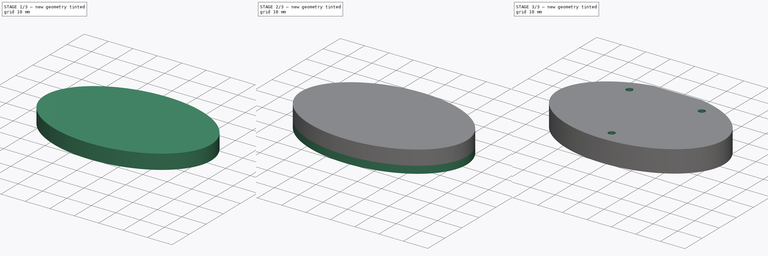
[diagram: build sequence overview — one tinted view per stage of 3, left to right]
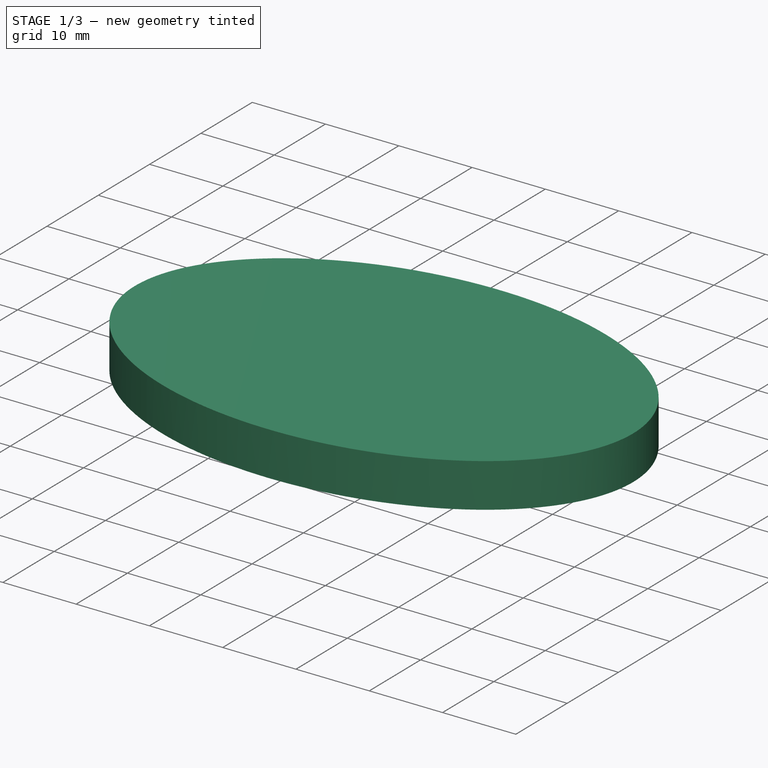
[diagram: stage 1 of 3 — iso view after this stage's code; geometry added in this stage tinted green]
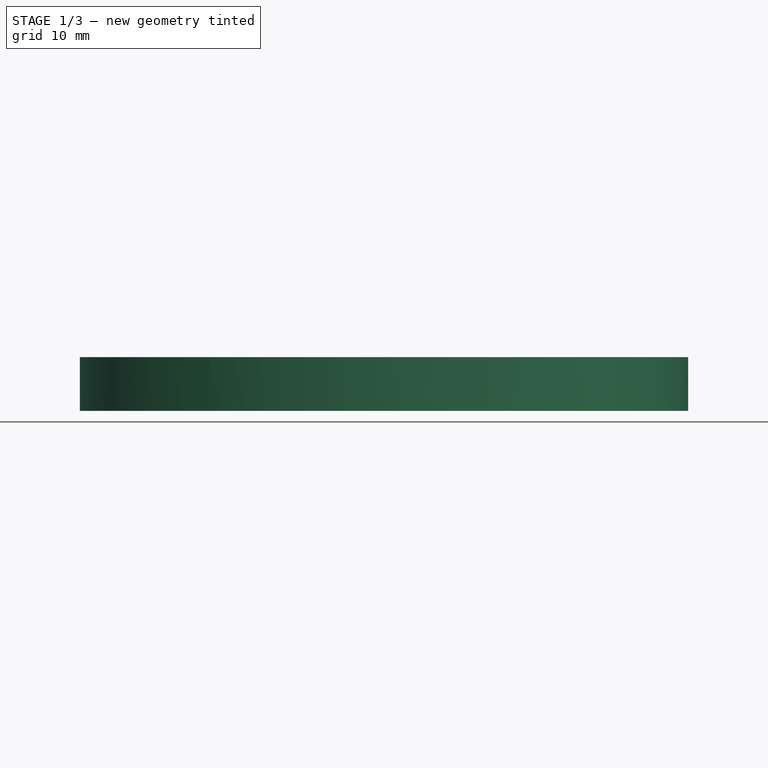
[diagram: stage 1 of 3 — front view after this stage's code; geometry added in this stage tinted green]
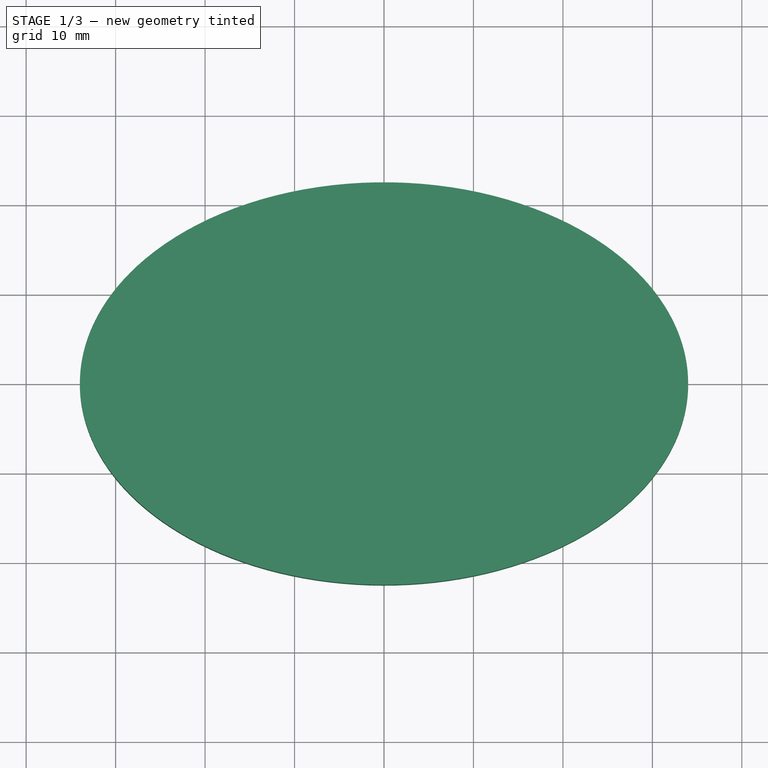
[diagram: stage 1 of 3 — top view after this stage's code; geometry added in this stage tinted green]
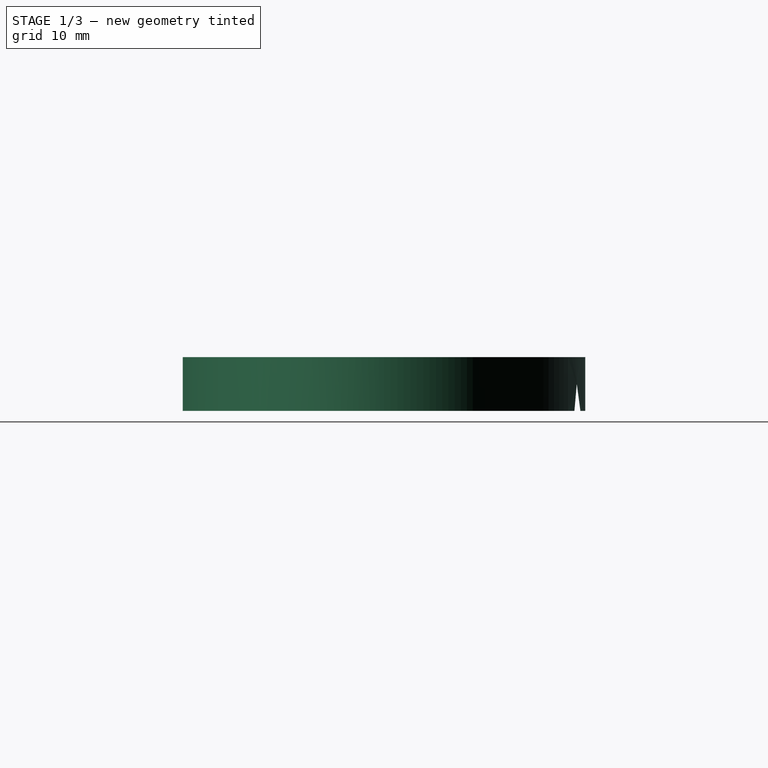
[diagram: stage 1 of 3 — right view after this stage's code; geometry added in this stage tinted green]
FCSTD DOCUMENT  (FreeCAD 0.17R13541 (Git))
Label: Digi-Night-Light-8Dense-LEDS-Oval-USB-V0.15
License: All rights reserved
LicenseURL: http://en.wikipedia.org/wiki/All_rights_reserved
objects: Sketcher::SketchObject×6, PartDesign::Pocket×4, PartDesign::Pad×2, PartDesign::Body×1, App::Part×1
note: 19 computed .brp shape members not serialized (recipe doc carries the construction recipe); baked Part::Feature solids carry a one-line shape summary decoded from their .brp

FEATURE [Sketcher::SketchObject] Sketch
  MapMode = 5
  Support = -> [XY_Plane001]
  sketch-geometry (6):
    g0: Ellipse CenterX=0 CenterY=0 CenterZ=0 NormalX=0 NormalY=0 NormalZ=1 MajorRadius=34 MinorRadius=22.5 AngleXU=0
    g1: LineSegment [constr] StartX=34 StartY=0 StartZ=0 EndX=-34 EndY=0 EndZ=0
    g2: LineSegment [constr] StartX=0 StartY=22.5 StartZ=0 EndX=0 EndY=-22.5 EndZ=0
    g3: GeomPoint X=25.4902 Y=0 Z=0
    g4: GeomPoint X=-25.4902 Y=0 Z=0
    g5: LineSegment StartX=-6.25 StartY=-22.1166 StartZ=0 EndX=6.25 EndY=-22.1166 EndZ=0
  constraints (9):
    c: InternalAlignment(g1-g4 -> g0) x4
    c: Coincident(g0,g-1)
    c: PointOnObject(g2,g-2)
    c: Distance(g2,g2) = 45
    c: Distance(g1,g1) = 68
    c: PointOnObject(g5,g0)
    c: PointOnObject(g5,g0)
    c: Horizontal(g5)
    c: Distance(g5,g5) = 12.5
FEATURE [PartDesign::Pad] Pad
  Length = 6
  Length2 = 100
  Profile = -> Sketch
  Type = 0
FEATURE [Sketcher::SketchObject] Sketch001
  ExternalGeometry = -> [Pad]
  MapMode = 5
  Placement = pos=(0,0,0) rot=(1,0,0;3.14159rad)
  Support = -> [Pad]
  sketch-geometry (9):
    g0: LineSegment StartX=9.775 StartY=-3.45006 StartZ=0 EndX=9.775 EndY=-21.5501 EndZ=0
    g1: LineSegment StartX=9.775 StartY=-21.5501 StartZ=0 EndX=-9.775 EndY=-21.5501 EndZ=0
    g2: LineSegment StartX=-9.775 StartY=-21.5501 StartZ=0 EndX=-9.775 EndY=-3.45006 EndZ=0
    g3: LineSegment StartX=-28.5 StartY=8.54994 StartZ=0 EndX=28.5 EndY=8.54994 EndZ=0
    g4: LineSegment StartX=28.5 StartY=8.54994 StartZ=0 EndX=28.5 EndY=-3.45006 EndZ=0
    g5: LineSegment StartX=-28.5 StartY=-3.45006 StartZ=0 EndX=-28.5 EndY=8.54994 EndZ=0
    g6: GeomPoint X=0 Y=8.54994 Z=0
    g7: LineSegment StartX=-28.5 StartY=-3.45006 StartZ=0 EndX=-9.775 EndY=-3.45006 EndZ=0
    g8: LineSegment StartX=9.775 StartY=-3.45006 StartZ=0 EndX=28.5 EndY=-3.45006 EndZ=0
  constraints (26):
    c: Coincident(g0,g1)
    c: Coincident(g1,g2)
    c: Horizontal(g1)
    c: Vertical(g0)
    c: Vertical(g2)
    c: PointOnObject(g1,g-3)
    c: PointOnObject(g0,g-3)
    c: Distance(g1) = 19.55
    c: Distance(g0) = 18.1
    c: Coincident(g3,g4)
    c: Coincident(g5,g3)
    c: Horizontal(g3)
    c: Vertical(g4)
    c: Vertical(g5)
    c: Distance(g4) = 12
    c: Distance(g3) = 57
    c: PointOnObject(g6,g3)
    c: Symmetric(g3,g3,g6)
    c: PointOnObject(g6,g-2)
    c: Coincident(g7,g5)
    c: Coincident(g7,g2)
    c: Horizontal(g7)
    c: Coincident(g8,g0)
    c: Coincident(g8,g4)
    c: Horizontal(g8)
    c: Distance(g2) = 18.1
FEATURE [PartDesign::Pocket] Pocket
  BaseFeature = -> Pad
  Length = 3
  Length2 = 100
  Profile = -> Sketch001
  Type = 0
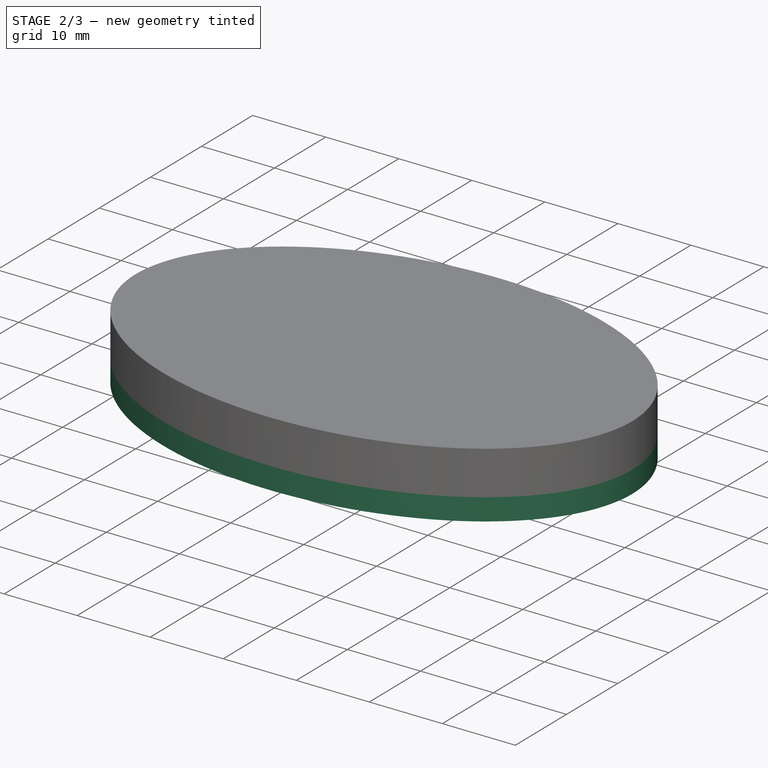
[diagram: stage 2 of 3 — iso view after this stage's code; geometry added in this stage tinted green]
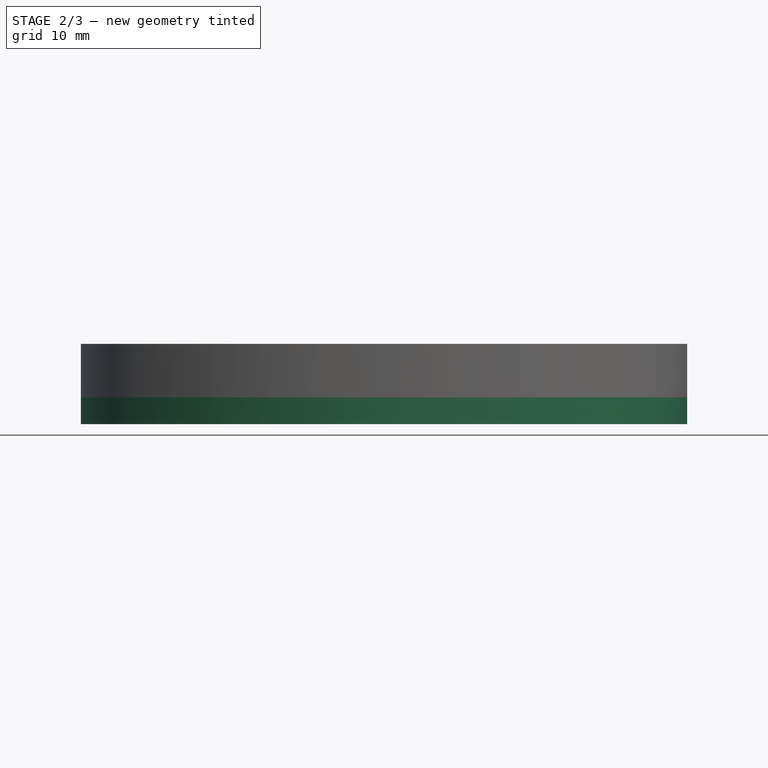
[diagram: stage 2 of 3 — front view after this stage's code; geometry added in this stage tinted green]
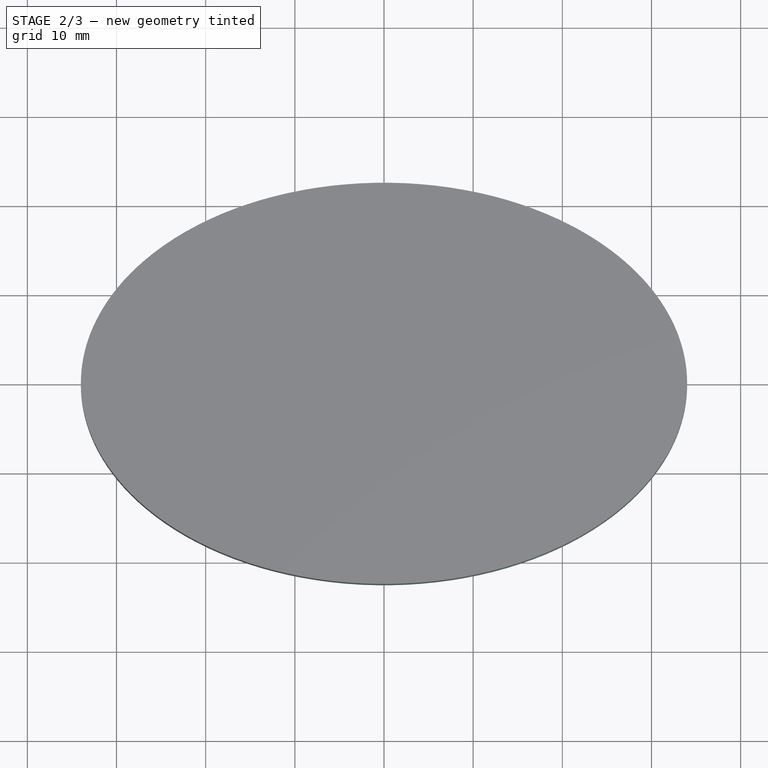
[diagram: stage 2 of 3 — top view after this stage's code; geometry added in this stage tinted green]
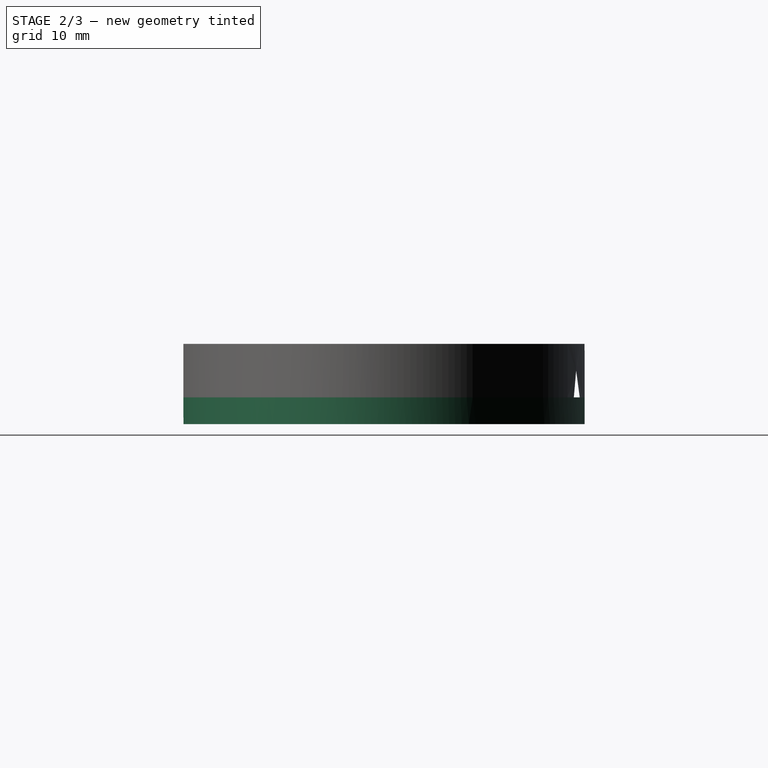
[diagram: stage 2 of 3 — right view after this stage's code; geometry added in this stage tinted green]
FEATURE [Sketcher::SketchObject] Sketch002
  ExternalGeometry = -> [Pocket]
  MapMode = 5
  Placement = pos=(0,0,0) rot=(1,0,0;3.14159rad)
  Support = -> [Pocket]
  sketch-geometry (5):
    g0: Ellipse CenterX=0 CenterY=0 CenterZ=0 NormalX=0 NormalY=0 NormalZ=1 MajorRadius=34 MinorRadius=22.5 AngleXU=0
    g1: LineSegment [constr] StartX=34 StartY=0 StartZ=0 EndX=-34 EndY=0 EndZ=0
    g2: LineSegment [constr] StartX=0 StartY=22.5 StartZ=0 EndX=0 EndY=-22.5 EndZ=0
    g3: GeomPoint X=25.4902 Y=0 Z=0
    g4: GeomPoint X=-25.4902 Y=0 Z=0
  constraints (4):
    c: InternalAlignment(g1-g4 -> g0) x4
    c: Coincident(g0,g-1)
    c: Equal(g0,g-3)
    c: PointOnObject(g2,g-2)
FEATURE [PartDesign::Pad] Pad001
  BaseFeature = -> Pocket
  Length = 3
  Length2 = 100
  Profile = -> Sketch002
  Type = 0
FEATURE [Sketcher::SketchObject] Sketch003
  ExternalGeometry = -> [Pad001]
  MapMode = 5
  Placement = pos=(0,0,-3) rot=(1,0,0;3.14159rad)
  Support = -> [Pad001]
  sketch-geometry (5):
    g0: LineSegment StartX=-28 StartY=4.04994 StartZ=0 EndX=28 EndY=4.04994 EndZ=0
    g1: LineSegment StartX=28 StartY=4.04994 StartZ=0 EndX=28 EndY=1.04994 EndZ=0
    g2: LineSegment StartX=28 StartY=1.04994 StartZ=0 EndX=-28 EndY=1.04994 EndZ=0
    g3: LineSegment StartX=-28 StartY=1.04994 StartZ=0 EndX=-28 EndY=4.04994 EndZ=0
    g4: GeomPoint X=0 Y=4.04994 Z=0
  constraints (14):
    c: Coincident(g0,g1)
    c: Coincident(g1,g2)
    c: Coincident(g2,g3)
    c: Coincident(g3,g0)
    c: Horizontal(g0)
    c: Horizontal(g2)
    c: Vertical(g1)
    c: Vertical(g3)
    c: Distance(g1) = 3
    c: Distance(g0) = 56
    c: PointOnObject(g4,g0)
    c: Symmetric(g0,g0,g4)
    c: PointOnObject(g4,g-2)
    c: Distance(g0,g-3) = 4.5
FEATURE [PartDesign::Pocket] Pocket001
  BaseFeature = -> Pad001
  Length = 3
  Length2 = 100
  Profile = -> Sketch003
  Type = 0
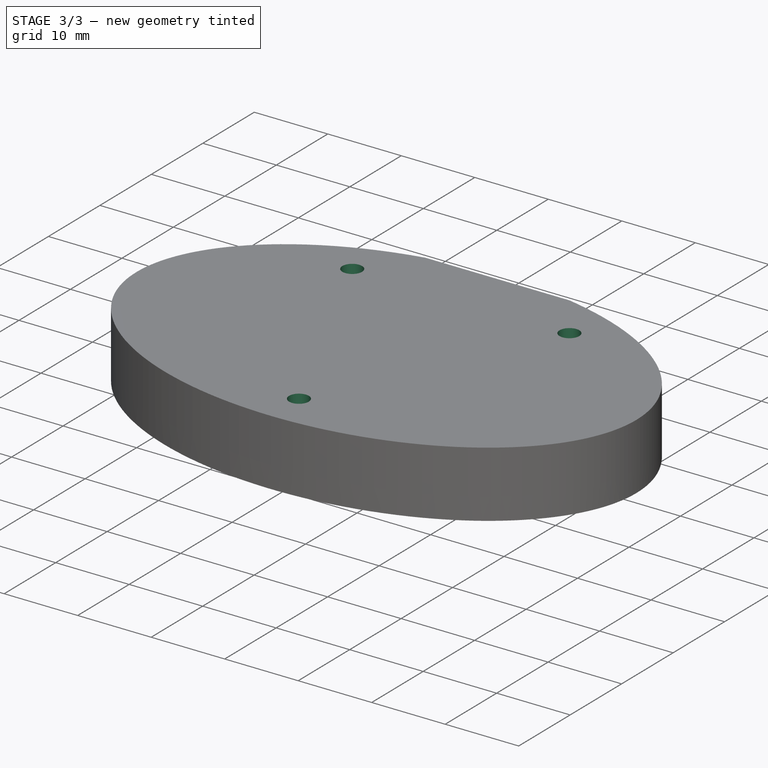
[diagram: stage 3 of 3 — iso view after this stage's code; geometry added in this stage tinted green]
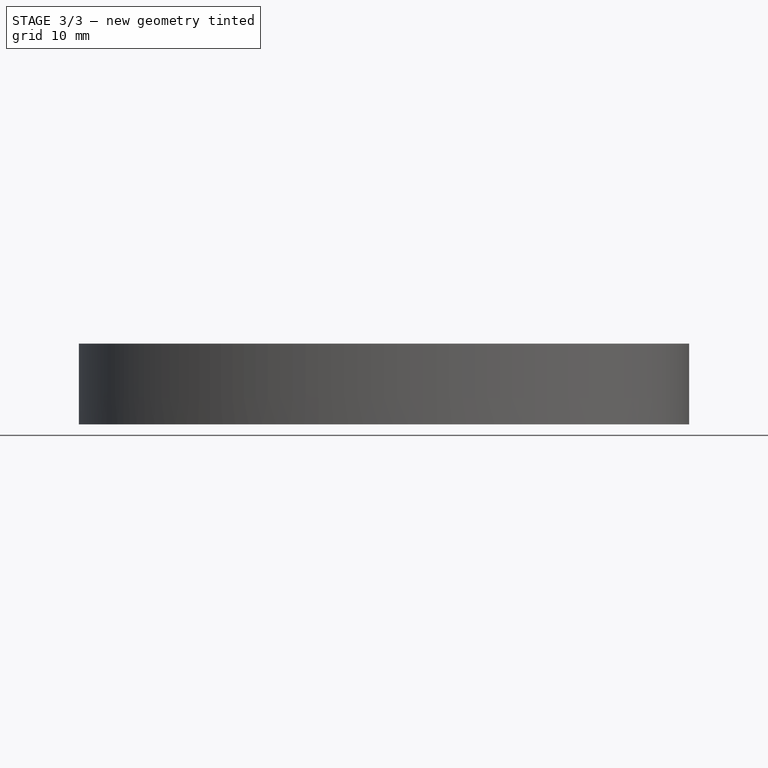
[diagram: stage 3 of 3 — front view after this stage's code; geometry added in this stage tinted green]
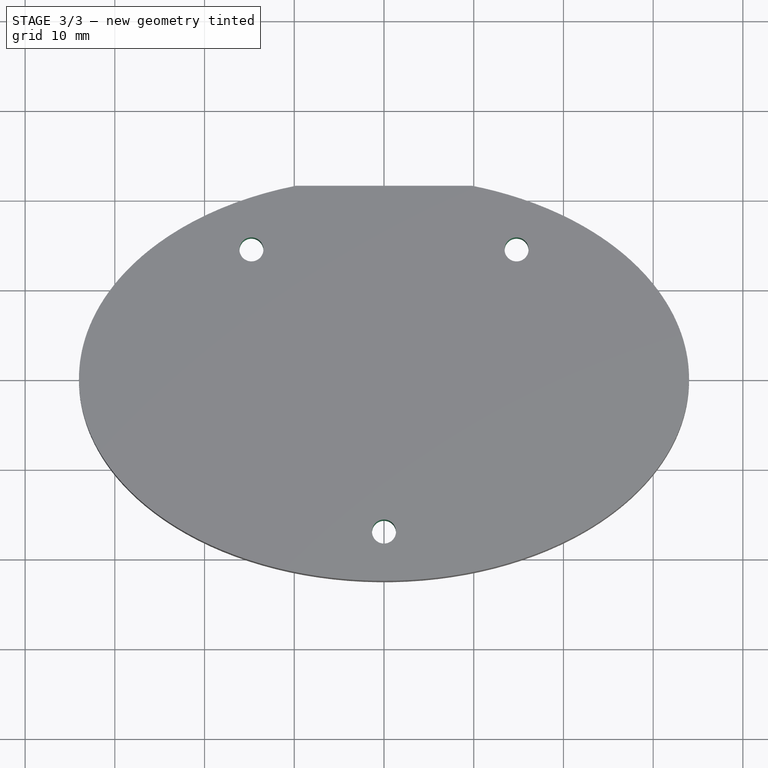
[diagram: stage 3 of 3 — top view after this stage's code; geometry added in this stage tinted green]
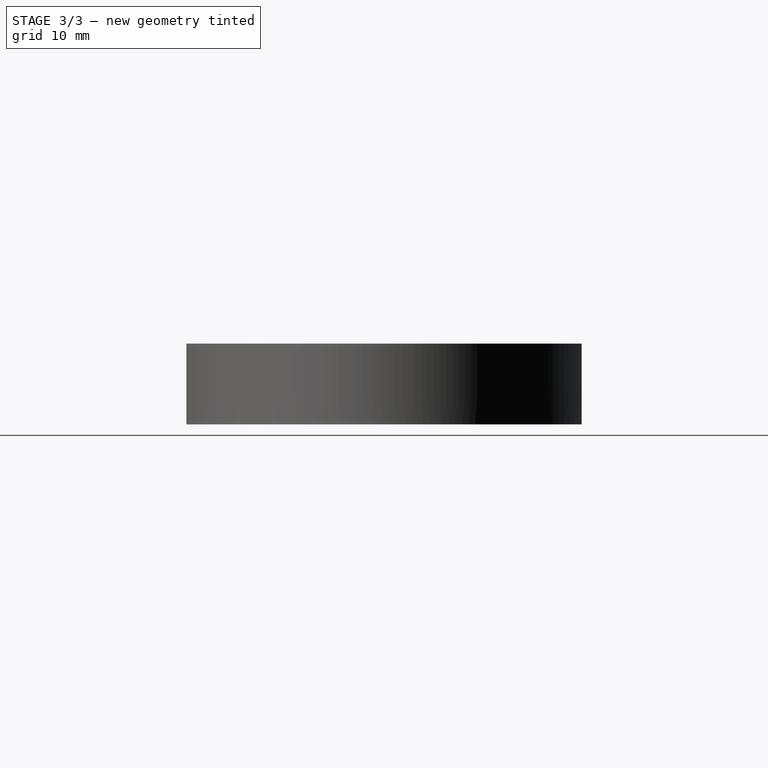
[diagram: stage 3 of 3 — right view after this stage's code; geometry added in this stage tinted green]
FEATURE [Sketcher::SketchObject] Sketch004
  ExternalGeometry = -> [Pocket001]
  MapMode = 5
  Placement = pos=(0,0,-3) rot=(1,0,0;3.14159rad)
  Support = -> [Pocket001]
  sketch-geometry (4):
    g0: LineSegment StartX=-9.8 StartY=-21.5451 StartZ=0 EndX=9.8 EndY=-21.5451 EndZ=0
    g1: LineSegment StartX=9.8 StartY=-21.5451 StartZ=0 EndX=9.8 EndY=-22.5451 EndZ=0
    g2: LineSegment StartX=9.8 StartY=-22.5451 StartZ=0 EndX=-9.8 EndY=-22.5451 EndZ=0
    g3: LineSegment StartX=-9.8 StartY=-22.5451 StartZ=0 EndX=-9.8 EndY=-21.5451 EndZ=0
  constraints (12):
    c: Coincident(g0,g1)
    c: Coincident(g1,g2)
    c: Coincident(g2,g3)
    c: Coincident(g3,g0)
    c: Horizontal(g0)
    c: Horizontal(g2)
    c: Vertical(g1)
    c: Vertical(g3)
    c: PointOnObject(g0,g-3)
    c: PointOnObject(g0,g-3)
    c: Distance(g0) = 19.6
    c: Distance(g1) = 1
FEATURE [PartDesign::Pocket] Pocket002
  BaseFeature = -> Pocket001
  Length = 5
  Length2 = 100
  Profile = -> Sketch004
  Type = 1
FEATURE [Sketcher::SketchObject] Sketch005
  ExternalGeometry = -> [Pocket002]
  MapMode = 5
  Placement = pos=(0,0,-3) rot=(1,0,0;3.14159rad)
  Support = -> [Pocket002]
  sketch-geometry (4):
    g0: Circle CenterX=-14.775 CenterY=-14.4501 CenterZ=0 NormalX=0 NormalY=0 NormalZ=1 AngleXU=0 Radius=1.34
    g1: GeomPoint X=-13.4355 Y=-14.4877 Z=0
    g2: Circle CenterX=0 CenterY=17 CenterZ=0 NormalX=0 NormalY=0 NormalZ=1 AngleXU=0 Radius=1.34
    g3: Circle CenterX=14.775 CenterY=-14.4501 CenterZ=0 NormalX=0 NormalY=0 NormalZ=1 AngleXU=0 Radius=1.34
  constraints (10):
    c: PointOnObject(g1,g0)
    c: Distance(g0,g1) = 1.34
    c: Distance(g0,g-3) = 5
    c: PointOnObject(g2,g-2)
    c: Equal(g0,g2)
    c: Equal(g3,g0)
    c: Distance(g3,g-6) = 5
    c: Distance(g3,g-7) = 11
    c: Distance(g0,g-5) = 11
    c: Distance(g2,g-1) = 17
FEATURE [PartDesign::Pocket] Pocket003
  BaseFeature = -> Pocket002
  Length = 5
  Length2 = 100
  Profile = -> Sketch005
  Type = 1
FEATURE [PartDesign::Body] Body
  Group = -> [Sketch,Pad,Sketch001,Pocket,Sketch002,Pad001,Sketch003,Pocket001,Sketch004,Pocket002,Sketch005,Pocket003]
  Origin = -> Origin001
  Tip = -> Pocket003
FEATURE [App::Part] Part
  Group = -> [Body]
  License = CC BY 3.0
  LicenseURL = http://creativecommons.org/licenses/by/3.0/
  Origin = -> Origin
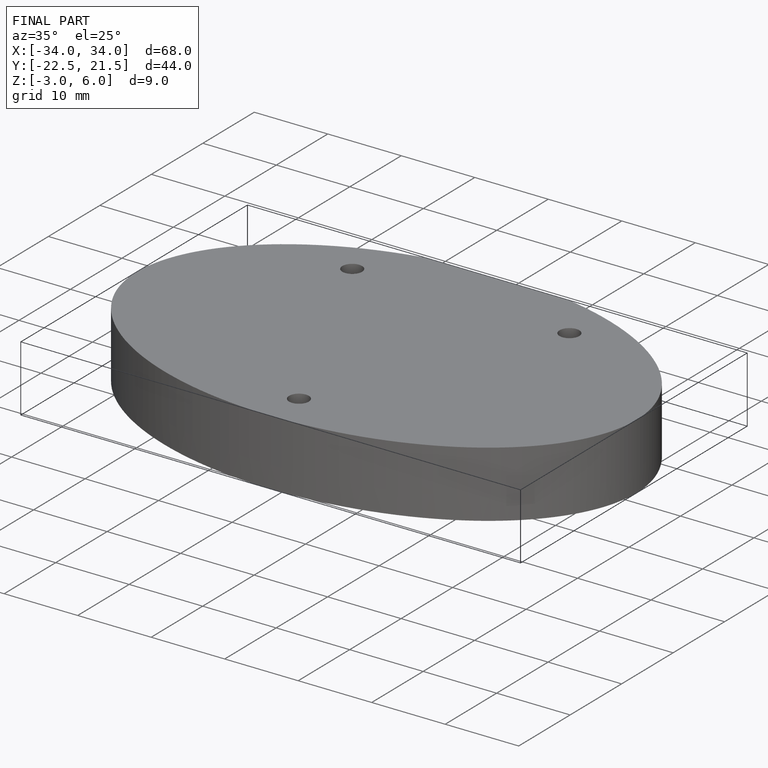
[diagram: finished part — iso view with bounding-box wireframe]
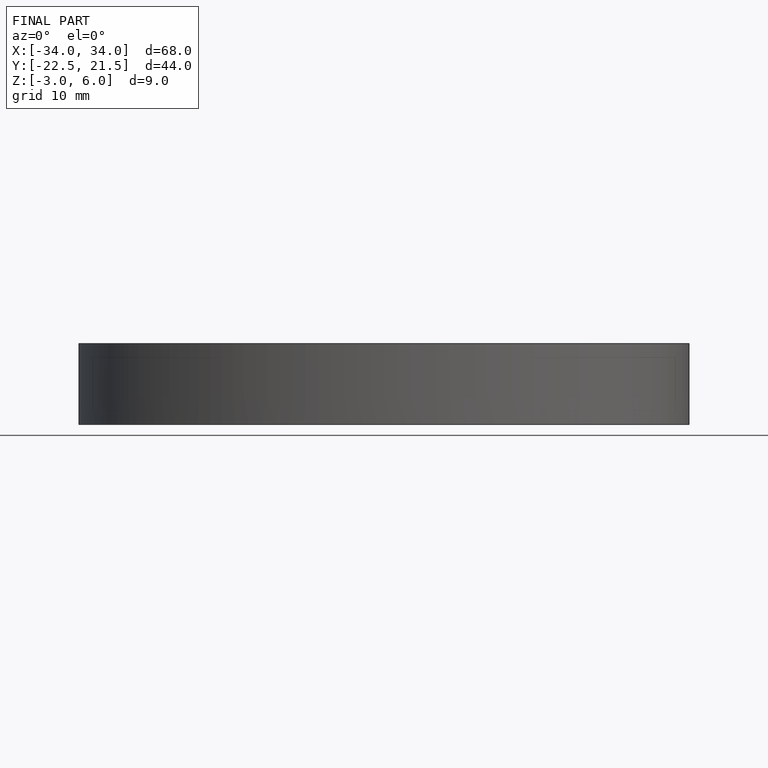
[diagram: finished part — front view with bounding-box wireframe]
